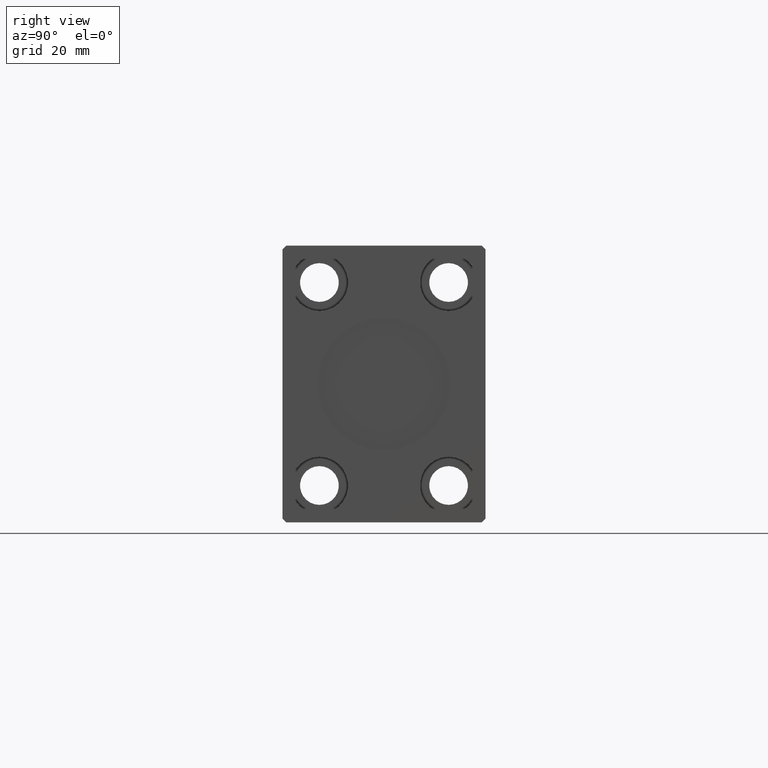
[diagram: clean part render]
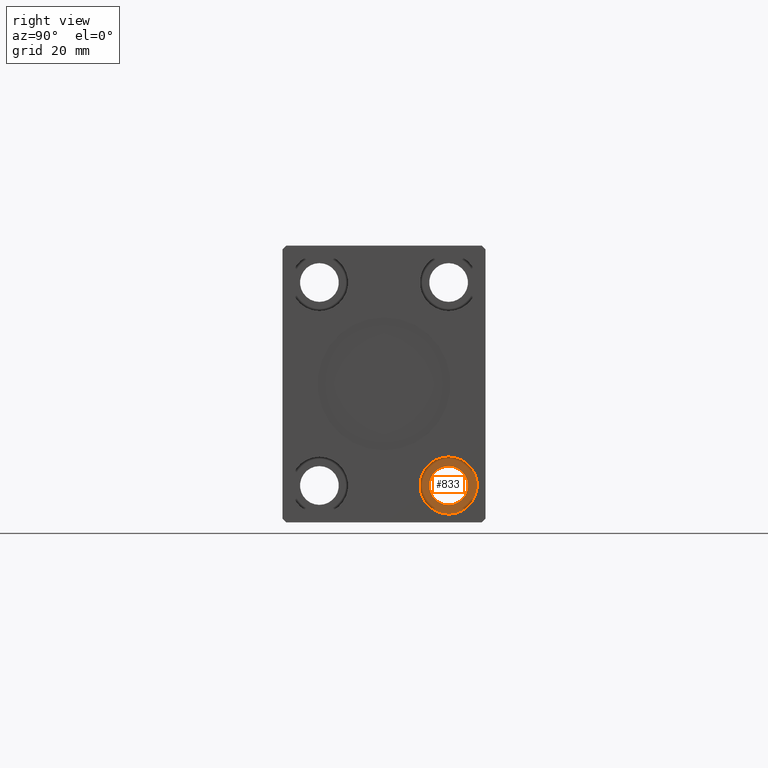
[diagram: same view with one face highlighted and labeled with its STEP entity id]
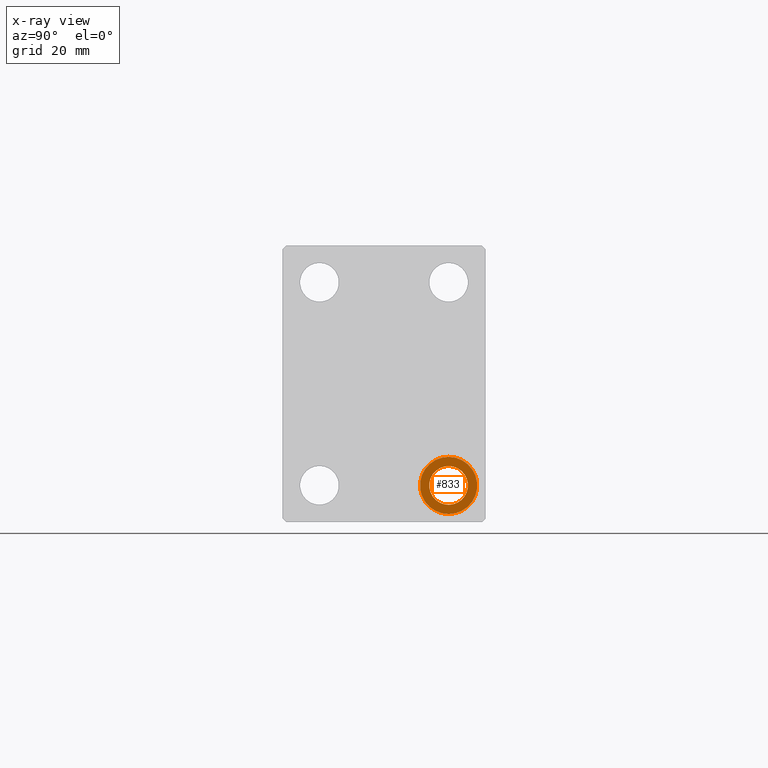
[diagram: x-ray of the same camera — body ghosted, the highlighted face saturated]
A machine part, right view. The second image highlights one B-rep face of the part: STEP entity #833.
The next image is the same camera in x-ray: the body ghosted, the highlighted face saturated — about 0% of this face is hidden behind the body in this view.
In plain terms, the highlighted planar face has unit normal (1, 0, -0).
Its self-contained STEP definition (entity closure, byte-faithful):
#833 = ADVANCED_FACE ( 'NONE', ( #30046, #10196 ), #13860, .T. ) ;
#2057 = CARTESIAN_POINT ( 'NONE',  ( 164.6699999999999875, 17.50000000000000000, -27.50000000000000000 ) ) ;
#7094 = CARTESIAN_POINT ( 'NONE',  ( 164.6699999999999875, 17.50000000000000000, -27.50000000000000000 ) ) ;
#7150 = VERTEX_POINT ( 'NONE', #19743 ) ;
#7482 = ORIENTED_EDGE ( 'NONE', *, *, #26604, .F. ) ;
#7893 = DIRECTION ( 'NONE',  ( 0.000000000000000000, 0.000000000000000000, -1.000000000000000000 ) ) ;
#8201 = VERTEX_POINT ( 'NONE', #13023 ) ;
#9668 = VERTEX_POINT ( 'NONE', #34789 ) ;
#10196 = FACE_OUTER_BOUND ( 'NONE', #18055, .T. ) ;
#10743 = DIRECTION ( 'NONE',  ( 0.000000000000000000, 0.000000000000000000, 1.000000000000000000 ) ) ;
#10880 = CARTESIAN_POINT ( 'NONE',  ( 164.6699999999999875, 17.50000000000000000, -27.50000000000000000 ) ) ;
#10990 = ORIENTED_EDGE ( 'NONE', *, *, #32929, .F. ) ;
#12964 = DIRECTION ( 'NONE',  ( 0.000000000000000000, 0.000000000000000000, -1.000000000000000000 ) ) ;
#13023 = CARTESIAN_POINT ( 'NONE',  ( 164.6699999999999875, 17.50000000000000000, -19.74999999999999645 ) ) ;
#13860 = PLANE ( 'NONE',  #34326 ) ;
#13904 = DIRECTION ( 'NONE',  ( -1.000000000000000000, -0.000000000000000000, -0.000000000000000000 ) ) ;
#18001 = DIRECTION ( 'NONE',  ( 1.000000000000000000, 0.000000000000000000, 0.000000000000000000 ) ) ;
#18055 = EDGE_LOOP ( 'NONE', ( #40681, #7482 ) ) ;
#18147 = AXIS2_PLACEMENT_3D ( 'NONE', #2057, #18001, #7893 ) ;
#19590 = VERTEX_POINT ( 'NONE', #37598 ) ;
#19743 = CARTESIAN_POINT ( 'NONE',  ( 164.6699999999999875, 17.50000000000000000, -35.25000000000000000 ) ) ;
#23091 = CARTESIAN_POINT ( 'NONE',  ( 164.6699999999999875, 17.50000000000000000, -27.50000000000000000 ) ) ;
#26446 = AXIS2_PLACEMENT_3D ( 'NONE', #7094, #26489, #10743 ) ;
#26489 = DIRECTION ( 'NONE',  ( -1.000000000000000000, -0.000000000000000000, -0.000000000000000000 ) ) ;
#26505 = AXIS2_PLACEMENT_3D ( 'NONE', #23091, #38853, #12964 ) ;
#26604 = EDGE_CURVE ( 'NONE', #8201, #7150, #35310, .T. ) ;
#27019 = DIRECTION ( 'NONE',  ( 0.000000000000000000, 0.000000000000000000, 1.000000000000000000 ) ) ;
#27258 = ORIENTED_EDGE ( 'NONE', *, *, #29960, .F. ) ;
#29904 = CIRCLE ( 'NONE', #26446, 7.750000000000003553 ) ;
#29960 = EDGE_CURVE ( 'NONE', #19590, #9668, #30581, .T. ) ;
#30046 = FACE_BOUND ( 'NONE', #36410, .T. ) ;
#30581 = CIRCLE ( 'NONE', #18147, 5.250000000000000888 ) ;
#32697 = CIRCLE ( 'NONE', #26505, 5.250000000000000888 ) ;
#32929 = EDGE_CURVE ( 'NONE', #9668, #19590, #32697, .T. ) ;
#33920 = DIRECTION ( 'NONE',  ( 1.000000000000000000, 0.000000000000000000, -0.000000000000000000 ) ) ;
#34326 = AXIS2_PLACEMENT_3D ( 'NONE', #36293, #33920, #27019 ) ;
#34789 = CARTESIAN_POINT ( 'NONE',  ( 164.6699999999999875, 17.50000000000000000, -32.75000000000000000 ) ) ;
#35310 = CIRCLE ( 'NONE', #41511, 7.750000000000003553 ) ;
#35367 = EDGE_CURVE ( 'NONE', #7150, #8201, #29904, .T. ) ;
#36293 = CARTESIAN_POINT ( 'NONE',  ( 164.6699999999999875, 17.50000000000000000, -27.50000000000000000 ) ) ;
#36410 = EDGE_LOOP ( 'NONE', ( #27258, #10990 ) ) ;
#37598 = CARTESIAN_POINT ( 'NONE',  ( 164.6699999999999875, 17.50000000000000000, -22.25000000000000000 ) ) ;
#38853 = DIRECTION ( 'NONE',  ( 1.000000000000000000, 0.000000000000000000, 0.000000000000000000 ) ) ;
#38981 = DIRECTION ( 'NONE',  ( 0.000000000000000000, 0.000000000000000000, 1.000000000000000000 ) ) ;
#40681 = ORIENTED_EDGE ( 'NONE', *, *, #35367, .F. ) ;
#41511 = AXIS2_PLACEMENT_3D ( 'NONE', #10880, #13904, #38981 ) ;